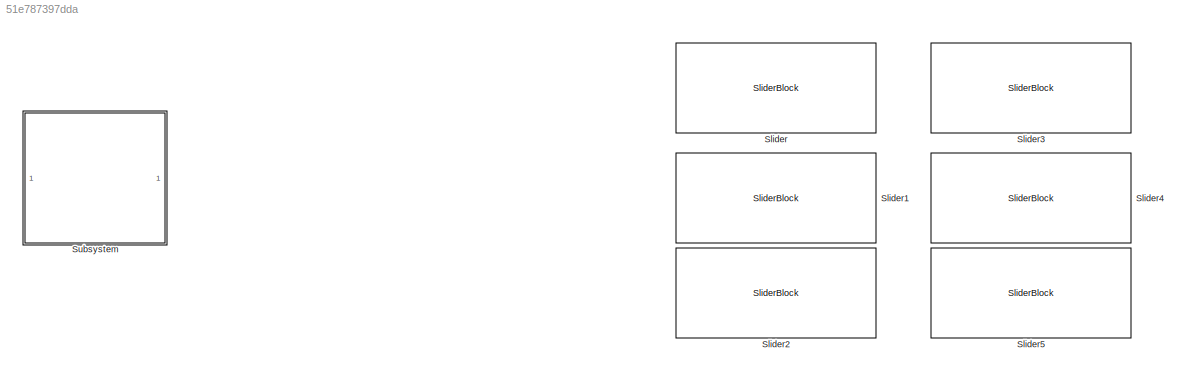
MODEL slx_51e787397dda
KIND model
CONFIG AbsTol = auto
CONFIG EnableMultiTasking = off
CONFIG FixedStep = auto
CONFIG InitFcn = Model;
CONFIG MaxStep = 1
CONFIG MinStep = auto
CONFIG RelTol = 1e-3
CONFIG SampleTimeConstraint = Unconstrained
CONFIG Solver = VariableStepAuto
CONFIG SolverName = VariableStepAuto
CONFIG StartTime = 0.0
CONFIG StopTime = inf
BLOCK [SliderBlock] Slider
  ScaleMax = 1
  ScaleMin = -1
BLOCK [SliderBlock] Slider1
  ScaleMax = 1
  ScaleMin = -1
BLOCK [SliderBlock] Slider2
  ScaleMax = 1
  ScaleMin = -1
BLOCK [SliderBlock] Slider3
  ScaleMax = 1
  ScaleMin = -1
BLOCK [SliderBlock] Slider4
  ScaleMax = 1
  ScaleMin = -1
BLOCK [SliderBlock] Slider5
  ScaleMax = 1
  ScaleMin = -1
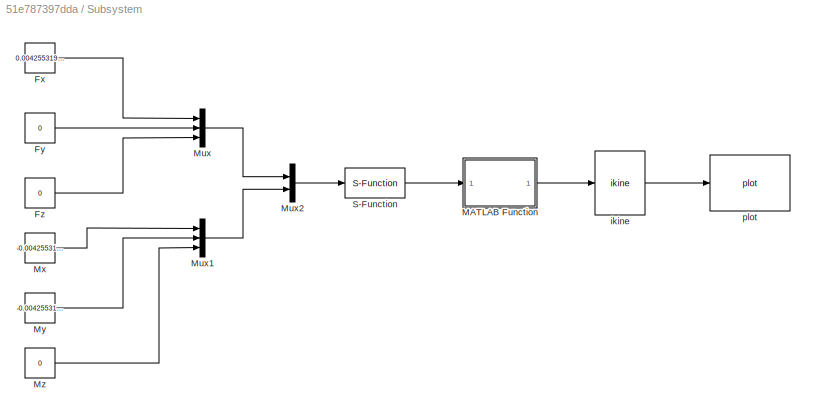
BLOCK [SubSystem] Subsystem
  Ports = []
  RequestExecContextInheritance = off
BLOCK [Constant] Subsystem/Fx
  Value = 0.004255319148936065
BLOCK [Constant] Subsystem/Fy
  Value = 0
BLOCK [Constant] Subsystem/Fz
  Value = 0
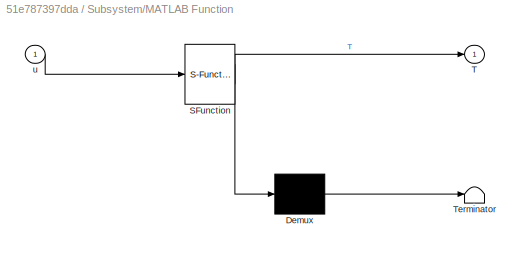
BLOCK [SubSystem] Subsystem/MATLAB Function
  ErrorFcn = Stateflow.Translate.translate
  PermitHierarchicalResolution = ExplicitOnly
  Ports = [1, 1]
  RequestExecContextInheritance = off
  SFBlockType = MATLAB Function
  TreatAsAtomicUnit = on
BLOCK [Demux] Subsystem/MATLAB Function/ Demux 
  Outputs = 1
  Ports = [1, 1]
BLOCK [S-Function] Subsystem/MATLAB Function/ SFunction 
  EnableBusSupport = on
  FunctionName = sf_sfun
  PortCounts = [1 2]
  Ports = [1, 2]
  SFcnIsStateOwnerBlock = off
  SFunctionDeploymentMode = off
  Tag = Stateflow S-Function SimMain 2
BLOCK [Terminator] Subsystem/MATLAB Function/ Terminator 
BLOCK [Outport] Subsystem/MATLAB Function/T
  IconDisplay = Port number
BLOCK [Inport] Subsystem/MATLAB Function/u
  IconDisplay = Port number
BLOCK [Mux] Subsystem/Mux
  DisplayOption = bar
  Inputs = 3
  Ports = [3, 1]
BLOCK [Mux] Subsystem/Mux1
  DisplayOption = bar
  Inputs = 3
  Ports = [3, 1]
BLOCK [Mux] Subsystem/Mux2
  DisplayOption = bar
  Inputs = 2
  Ports = [2, 1]
BLOCK [Constant] Subsystem/Mx
  Value = -0.004255319148936176
BLOCK [Constant] Subsystem/My
  Value = -0.004255319148936176
BLOCK [Constant] Subsystem/Mz
  Value = 0
BLOCK [S-Function] Subsystem/S-Function
  EnableBusSupport = off
  FunctionName = plant
  Ports = [1, 1]
  SFcnIsStateOwnerBlock = off
  SFunctionDeploymentMode = off
BLOCK [Reference] Subsystem/ikine  REF=roblocks/Arm/ikine  (lib defined in mdl_2a292b13c81b, mdl_69400f8cfe22, +12 more)
  Ports = [1, 1]
  SourceBlock = roblocks/Arm/ikine
BLOCK [Reference] Subsystem/plot  REF=roblocks/Arm/plot  (lib defined in mdl_2a292b13c81b, mdl_69400f8cfe22, +12 more)
  Ports = [1]
  SourceBlock = roblocks/Arm/plot
LINE Subsystem/Fx:1 -> Subsystem/Mux:1
LINE Subsystem/Fy:1 -> Subsystem/Mux:2
LINE Subsystem/Fz:1 -> Subsystem/Mux:3
LINE Subsystem/MATLAB Function:1 -> Subsystem/ikine:1
LINE Subsystem/Mux1:1 -> Subsystem/Mux2:2
LINE Subsystem/Mux2:1 -> Subsystem/S-Function:1
LINE Subsystem/Mux:1 -> Subsystem/Mux2:1
LINE Subsystem/Mx:1 -> Subsystem/Mux1:1
LINE Subsystem/My:1 -> Subsystem/Mux1:2
LINE Subsystem/Mz:1 -> Subsystem/Mux1:3
LINE Subsystem/S-Function:1 -> Subsystem/MATLAB Function:1
LINE Subsystem/ikine:1 -> Subsystem/plot:1
CHART Subsystem/MATLAB Function states=1 transitions=1
  STATE_LABEL 'eML_blk_kernel()'
  STATE_LABEL 'SCRIPT:\nfunction T = fcn(u)\nx0 = 0.5; y0 = 0; z0 = 0.8;\nroll0 = 0; pitch0 = 0; yaw0 = pi;\np0 = [x0; y0; z0];\nR0 = rotX(yaw0) * rotY(pitch0) * rotZ(roll0);\nT0 = eye(4);\nT0(1:3, 1:3) = R0;\nT0(1:3, 4) = p0;\n\nXe = u(1); Ye = u(2); Ze = u(3);\nphi = u(7); theta = u(8); psi = u(9);\npe = [Xe; Ye; Ze];\nRe = xyz2R(phi, theta, psi);\n\nT = T0;\nT(1:3, 4) = T(1:3, 4) + pe;\nT(1:3, 1:3) = Re * R0;\n'
